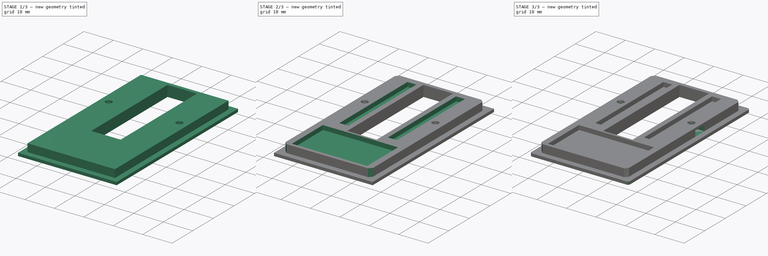
[diagram: build sequence overview — one tinted view per stage of 3, left to right]
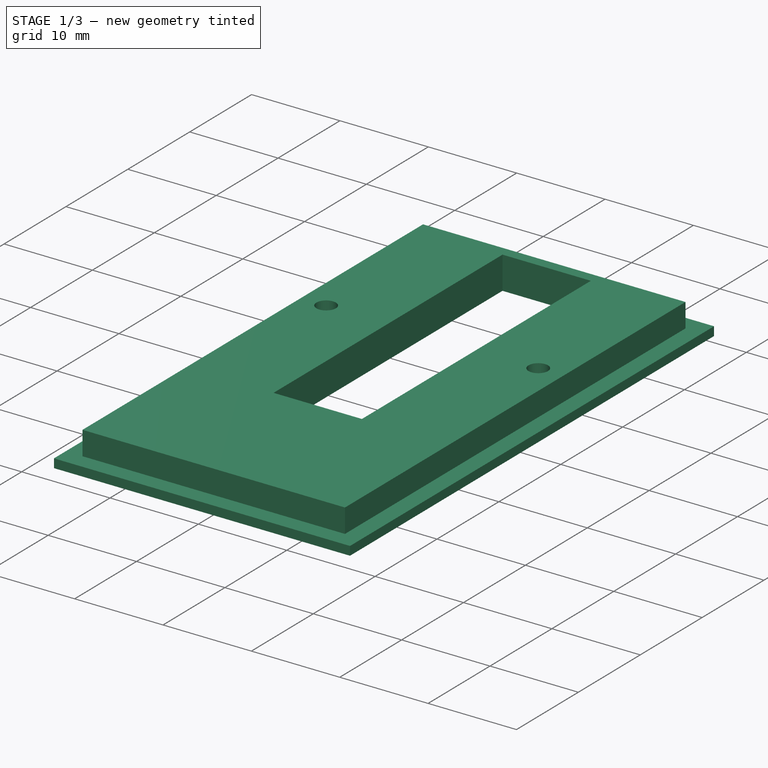
[diagram: stage 1 of 3 — iso view after this stage's code; geometry added in this stage tinted green]
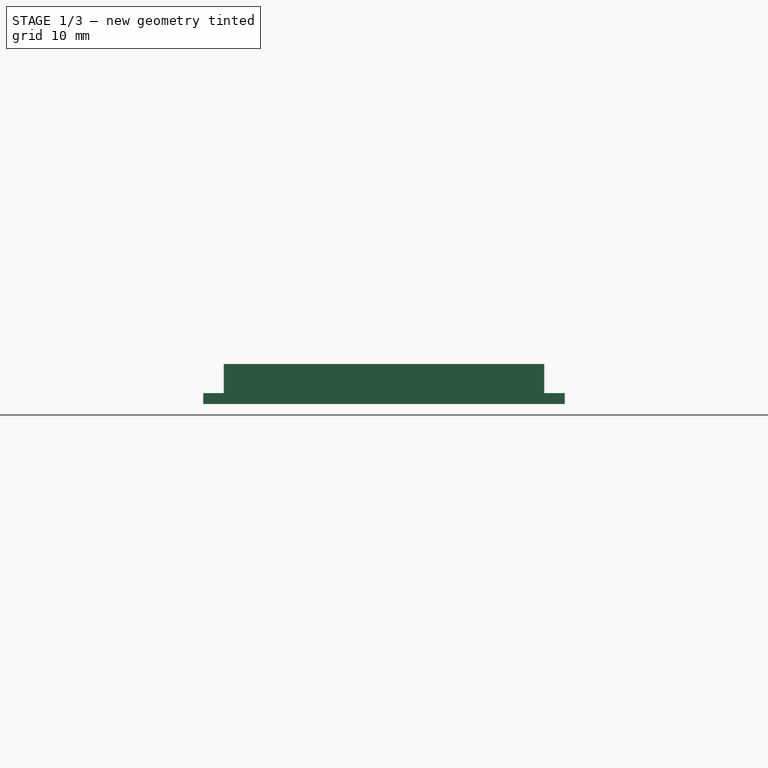
[diagram: stage 1 of 3 — front view after this stage's code; geometry added in this stage tinted green]
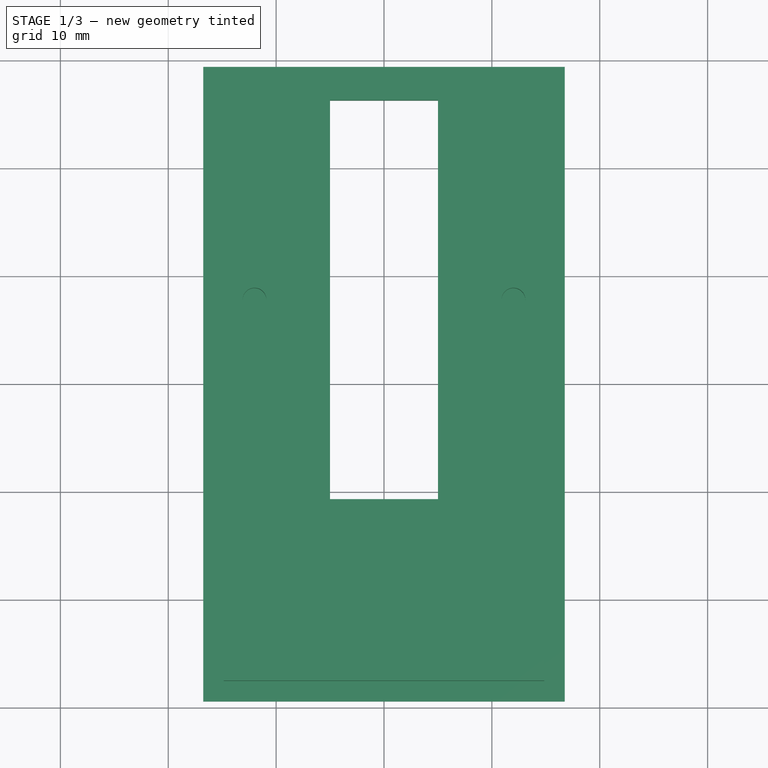
[diagram: stage 1 of 3 — top view after this stage's code; geometry added in this stage tinted green]
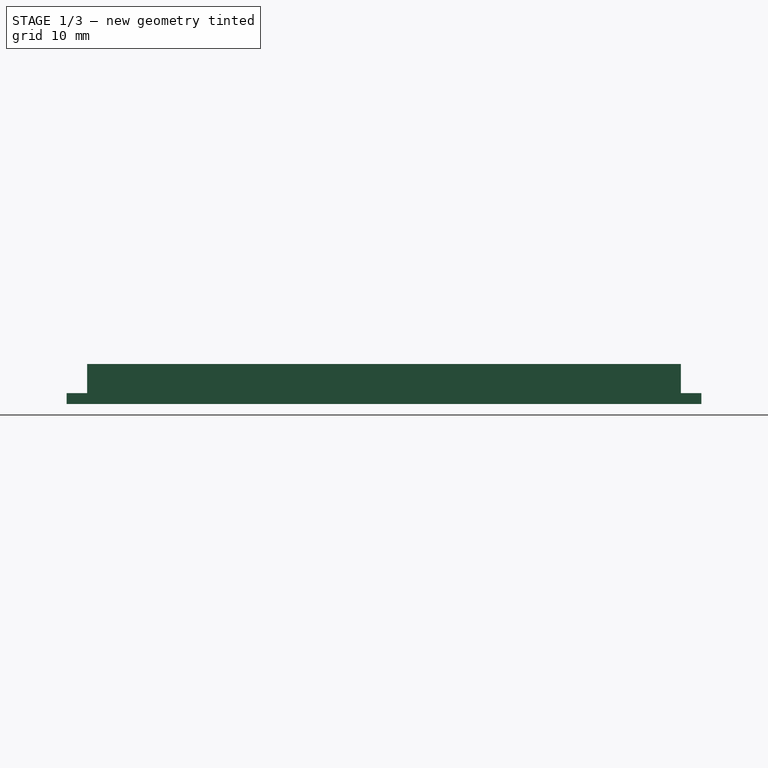
[diagram: stage 1 of 3 — right view after this stage's code; geometry added in this stage tinted green]
FCSTD DOCUMENT  (FreeCAD 1.0R39319 (Git))
Label: bay-top-1.1
License: All rights reserved
LicenseURL: https://en.wikipedia.org/wiki/All_rights_reserved
objects: Sketcher::SketchObject×5, PartDesign::Pocket×3, PartDesign::Pad×2, PartDesign::Chamfer×2, PartDesign::Mirrored×1, PartDesign::Body×1
note: 34 computed .brp shape members not serialized (recipe doc carries the construction recipe); baked Part::Feature solids carry a one-line shape summary decoded from their .brp

FEATURE [Sketcher::SketchObject] Sketch
  ArcFitTolerance = 1e-06
  AttachmentSupport = -> [XY_Plane]
  FullyConstrained = true
  MakeInternals = false
  MapMode = 5
  sketch-geometry (13):
    g0: LineSegment StartX=-14.85 StartY=27.5165 StartZ=0 EndX=-14.85 EndY=-27.5165 EndZ=0
    g1: LineSegment StartX=-14.85 StartY=-27.5165 StartZ=0 EndX=14.85 EndY=-27.5165 EndZ=0
    g2: LineSegment StartX=14.85 StartY=-27.5165 StartZ=0 EndX=14.85 EndY=27.5165 EndZ=0
    g3: LineSegment StartX=14.85 StartY=27.5165 StartZ=0 EndX=-14.85 EndY=27.5165 EndZ=0
    g4: GeomPoint [constr] X=0 Y=0 Z=0
    g5: LineSegment [constr] StartX=-14.25 StartY=-26.9165 StartZ=0 EndX=14.25 EndY=-26.9165 EndZ=0
    g6: LineSegment [constr] StartX=14.25 StartY=-26.9165 StartZ=0 EndX=14.25 EndY=26.9165 EndZ=0
    g7: LineSegment [constr] StartX=14.25 StartY=26.9165 StartZ=0 EndX=-14.25 EndY=26.9165 EndZ=0
    g8: LineSegment [constr] StartX=-14.25 StartY=26.9165 StartZ=0 EndX=-14.25 EndY=-26.9165 EndZ=0
    g9: GeomPoint [constr] X=0 Y=0 Z=0
    g10: Circle CenterX=-12 CenterY=7.7915 CenterZ=0 NormalX=0 NormalY=0 NormalZ=1 AngleXU=0 Radius=1.1
    g11: Circle CenterX=12 CenterY=7.7915 CenterZ=0 NormalX=0 NormalY=0 NormalZ=1 AngleXU=0 Radius=1.1
    g12: LineSegment [constr] StartX=-12 StartY=7.7915 StartZ=0 EndX=12 EndY=7.7915 EndZ=0
  constraints (31):
    c: Coincident(g0,g1)
    c: Coincident(g1,g2)
    c: Coincident(g2,g3)
    c: Coincident(g3,g0)
    c: Vertical(g0)
    c: Vertical(g2)
    c: Horizontal(g1)
    c: Horizontal(g3)
    c: Symmetric(g2,g0,g4)
    c: Coincident(g4,g-1)
    c: Coincident(g5,g6)
    c: Coincident(g6,g7)
    c: Coincident(g7,g8)
    c: Coincident(g8,g5)
    c: Horizontal(g5)
    c: Horizontal(g7)
    c: Vertical(g6)
    c: Vertical(g8)
    c: Symmetric(g7,g5,g9)
    c: Coincident(g9,g4)
    c: DistanceX(g7,g7) = 28.5
    c: DistanceY(g6,g6) = 53.833
    c: Equal(g10,g11)
    c: Coincident(g12,g10)
    c: Coincident(g12,g11)
    c: DistanceX(g7,g10) = 2.25
    c: Symmetric(g10,g11,g-2)
    c: Diameter(g10) = 2.2
    c: Distance(g0,g8) = 0.6
    c: Distance(g7,g3) = 0.6
    c: Distance(g12,g7) = 19.125
FEATURE [PartDesign::Pad] Pad
  Direction = (0,0,1)
  Length = 3.7
  Length2 = 10
  Profile = -> Sketch
  ReferenceAxis = -> Sketch [N_Axis]
  Refine = true
  Suppressed = false
  Type = 0
FEATURE [Sketcher::SketchObject] Sketch001
  ArcFitTolerance = 1e-06
  AttachmentSupport = -> [Pad]
  ExternalGeometry = -> [Pad]
  FullyConstrained = true
  MakeInternals = false
  MapMode = 5
  Placement = pos=(0,0,0) rot=(1,0,0;3.14159rad)
  sketch-geometry (6):
    g0: LineSegment StartX=-16.75 StartY=29.415 StartZ=0 EndX=-16.75 EndY=-29.415 EndZ=0
    g1: LineSegment StartX=-16.75 StartY=-29.415 StartZ=0 EndX=16.75 EndY=-29.415 EndZ=0
    g2: LineSegment StartX=16.75 StartY=-29.415 StartZ=0 EndX=16.75 EndY=29.415 EndZ=0
    g3: LineSegment StartX=16.75 StartY=29.415 StartZ=0 EndX=-16.75 EndY=29.415 EndZ=0
    g4: GeomPoint [constr] X=0 Y=0 Z=0
    g5: GeomPoint [constr] X=0 Y=0 Z=0
  constraints (13):
    c: Coincident(g0,g1)
    c: Coincident(g1,g2)
    c: Coincident(g2,g3)
    c: Coincident(g3,g0)
    c: Vertical(g0)
    c: Vertical(g2)
    c: Horizontal(g1)
    c: Horizontal(g3)
    c: Symmetric(g2,g0,g4)
    c: Coincident(g4,g-1)
    c: Coincident(g5,g4)
    c: DistanceX(g3,g3) = 33.5
    c: DistanceY(g2,g2) = 58.83
FEATURE [PartDesign::Pad] Pad001
  BaseFeature = -> Pad
  Direction = (0,0,-1)
  Length = 1
  Length2 = 10
  Profile = -> Sketch001
  ReferenceAxis = -> Sketch001 [N_Axis]
  Refine = true
  Reversed = true
  Suppressed = false
  Type = 0
FEATURE [Sketcher::SketchObject] Sketch003
  ArcFitTolerance = 1e-06
  FullyConstrained = true
  MakeInternals = false
  MapMode = 5
  Placement = pos=(0,0,0) rot=(1,0,0;3.14159rad)
  sketch-geometry (4):
    g0: LineSegment StartX=-5 StartY=10.7085 StartZ=0 EndX=-5 EndY=-26.2915 EndZ=0
    g1: LineSegment StartX=-5 StartY=-26.2915 StartZ=0 EndX=5 EndY=-26.2915 EndZ=0
    g2: LineSegment StartX=5 StartY=-26.2915 StartZ=0 EndX=5 EndY=10.7085 EndZ=0
    g3: LineSegment StartX=5 StartY=10.7085 StartZ=0 EndX=-5 EndY=10.7085 EndZ=0
  constraints (11):
    c: Coincident(g0,g1)
    c: Coincident(g1,g2)
    c: Coincident(g2,g3)
    c: Coincident(g3,g0)
    c: Vertical(g0)
    c: Vertical(g2)
    c: Horizontal(g3)
    c: DistanceX(g3,g3) = 10
    c: DistanceY(g2,g2) = 37
    c: Symmetric(g0,g1,g-2)
    c: DistanceY(g0,g-3) = 18.5
FEATURE [PartDesign::Pocket] Pocket001
  BaseFeature = -> Pad001
  Direction = (0,0,1)
  Length = 5
  Length2 = 5
  Profile = -> Sketch003
  ReferenceAxis = -> Sketch003 [N_Axis]
  Refine = true
  Suppressed = false
  Type = 1
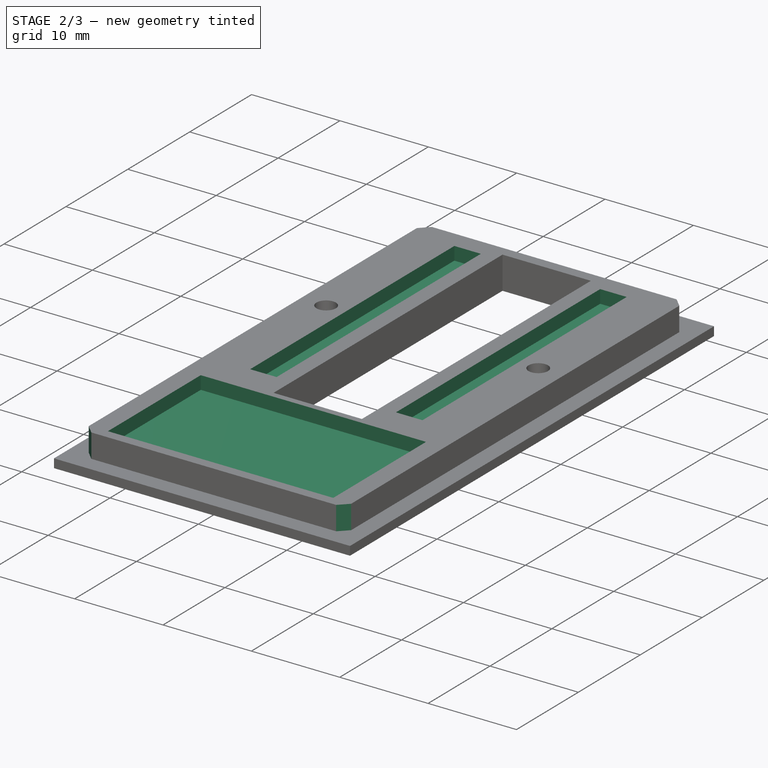
[diagram: stage 2 of 3 — iso view after this stage's code; geometry added in this stage tinted green]
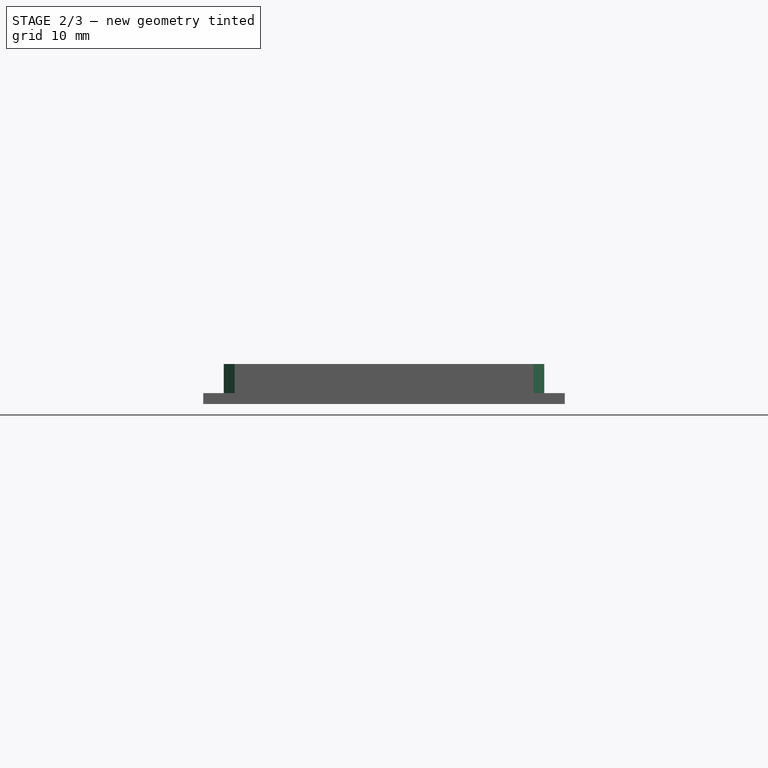
[diagram: stage 2 of 3 — front view after this stage's code; geometry added in this stage tinted green]
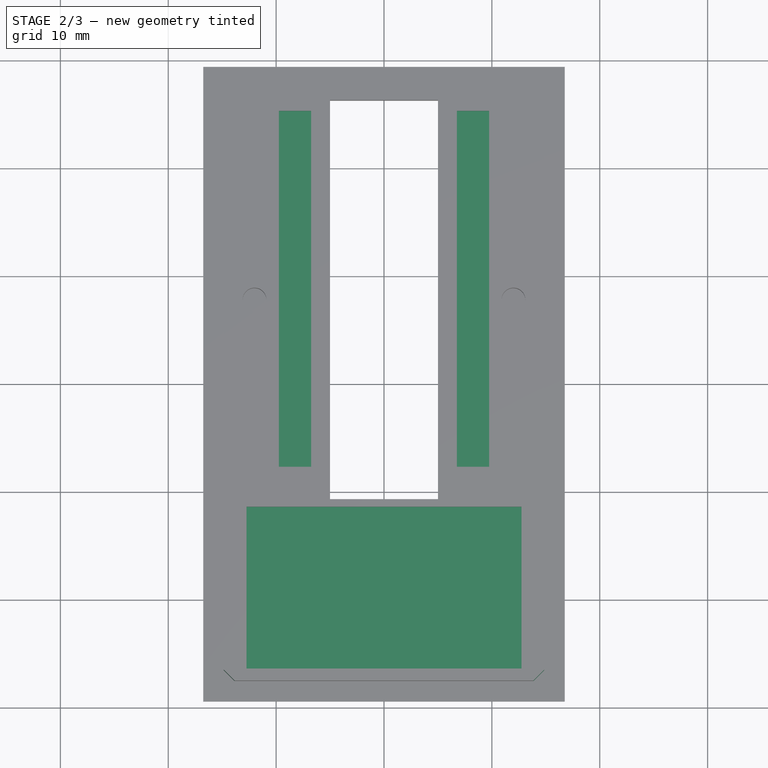
[diagram: stage 2 of 3 — top view after this stage's code; geometry added in this stage tinted green]
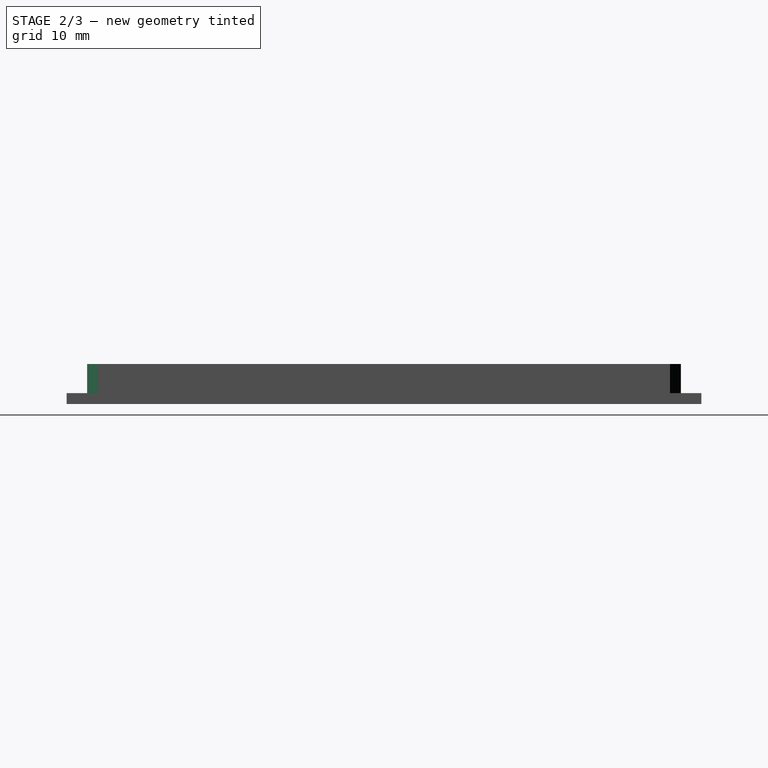
[diagram: stage 2 of 3 — right view after this stage's code; geometry added in this stage tinted green]
FEATURE [Sketcher::SketchObject] Sketch004
  ArcFitTolerance = 1e-06
  AttachmentSupport = -> [Pocket001]
  ExternalGeometry = -> [Pocket001]
  FullyConstrained = true
  MakeInternals = false
  MapMode = 5
  Placement = pos=(0,0,3.7) rot=(0,0,1;0rad)
  sketch-geometry (12):
    g0: LineSegment StartX=-9.75 StartY=25.2915 StartZ=0 EndX=-9.75 EndY=-7.7085 EndZ=0
    g1: LineSegment StartX=-9.75 StartY=-7.7085 StartZ=0 EndX=-6.75 EndY=-7.7085 EndZ=0
    g2: LineSegment StartX=-6.75 StartY=-7.7085 StartZ=0 EndX=-6.75 EndY=25.2915 EndZ=0
    g3: LineSegment StartX=-6.75 StartY=25.2915 StartZ=0 EndX=-9.75 EndY=25.2915 EndZ=0
    g4: LineSegment StartX=6.75 StartY=25.2915 StartZ=0 EndX=6.75 EndY=-7.7085 EndZ=0
    g5: LineSegment StartX=6.75 StartY=-7.7085 StartZ=0 EndX=9.75 EndY=-7.7085 EndZ=0
    g6: LineSegment StartX=9.75 StartY=-7.7085 StartZ=0 EndX=9.75 EndY=25.2915 EndZ=0
    g7: LineSegment StartX=9.75 StartY=25.2915 StartZ=0 EndX=6.75 EndY=25.2915 EndZ=0
    g8: LineSegment StartX=-12.75 StartY=-11.4085 StartZ=0 EndX=-12.75 EndY=-26.4085 EndZ=0
    g9: LineSegment StartX=-12.75 StartY=-26.4085 StartZ=0 EndX=12.75 EndY=-26.4085 EndZ=0
    g10: LineSegment StartX=12.75 StartY=-26.4085 StartZ=0 EndX=12.75 EndY=-11.4085 EndZ=0
    g11: LineSegment StartX=12.75 StartY=-11.4085 StartZ=0 EndX=-12.75 EndY=-11.4085 EndZ=0
  constraints (34):
    c: Coincident(g0,g1)
    c: Coincident(g1,g2)
    c: Coincident(g2,g3)
    c: Coincident(g3,g0)
    c: Vertical(g0)
    c: Vertical(g2)
    c: Horizontal(g1)
    c: Horizontal(g3)
    c: Coincident(g4,g5)
    c: Coincident(g5,g6)
    c: Coincident(g6,g7)
    c: Coincident(g7,g4)
    c: Vertical(g4)
    c: Vertical(g6)
    c: Horizontal(g5)
    c: Horizontal(g7)
    c: Coincident(g8,g9)
    c: Coincident(g9,g10)
    c: Coincident(g10,g11)
    c: Coincident(g11,g8)
    c: Vertical(g8)
    c: Vertical(g10)
    c: Horizontal(g9)
    c: Symmetric(g2,g4,g-2)
    c: Symmetric(g8,g10,g-2)
    c: Equal(g3,g7)
    c: Equal(g0,g6)
    c: DistanceX(g-3,g2) = 5.25
    c: DistanceY(g-3,g2) = 17.5
    c: DistanceX(g3,g3) = 3
    c: DistanceY(g2,g2) = 33
    c: DistanceX(g9,g9) = 25.5
    c: DistanceY(g8,g8) = 15
    c: Distance(g-3,g11) = 19.2
FEATURE [PartDesign::Pocket] Pocket002
  BaseFeature = -> Pocket001
  Direction = (0,0,-1)
  Length = 1.5
  Length2 = 5
  Profile = -> Sketch004
  ReferenceAxis = -> Sketch004 [N_Axis]
  Refine = true
  Suppressed = false
  Type = 0
FEATURE [PartDesign::Chamfer] Chamfer
  Angle = 45
  Base = -> Pocket002 [Edge29,Edge32,Edge31,Edge34]
  BaseFeature = -> Pocket002
  ChamferType = 0
  FlipDirection = false
  Refine = true
  Size = 1
  Size2 = 1
  SupportTransform = false
  Suppressed = false
  UseAllEdges = false
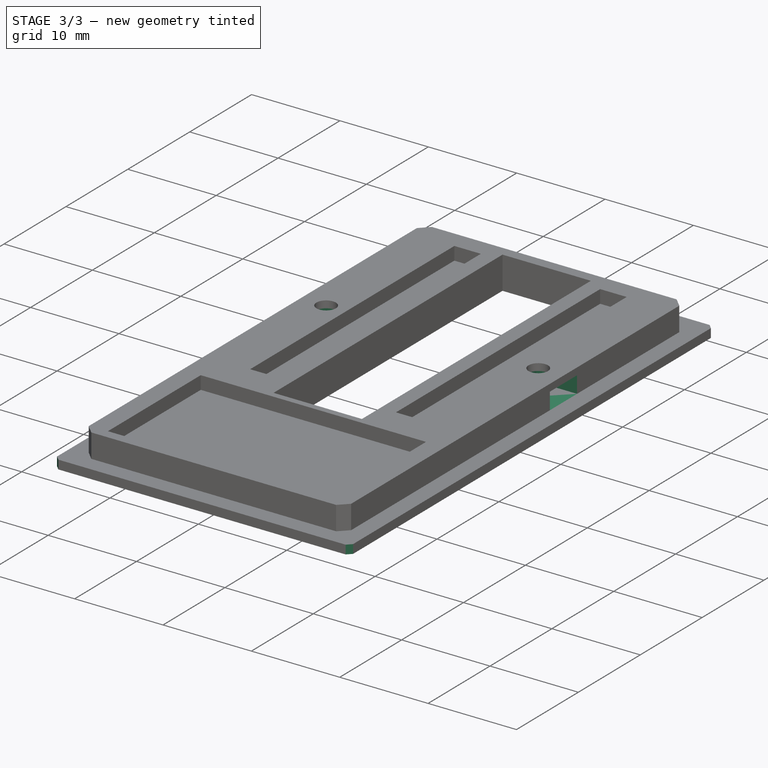
[diagram: stage 3 of 3 — iso view after this stage's code; geometry added in this stage tinted green]
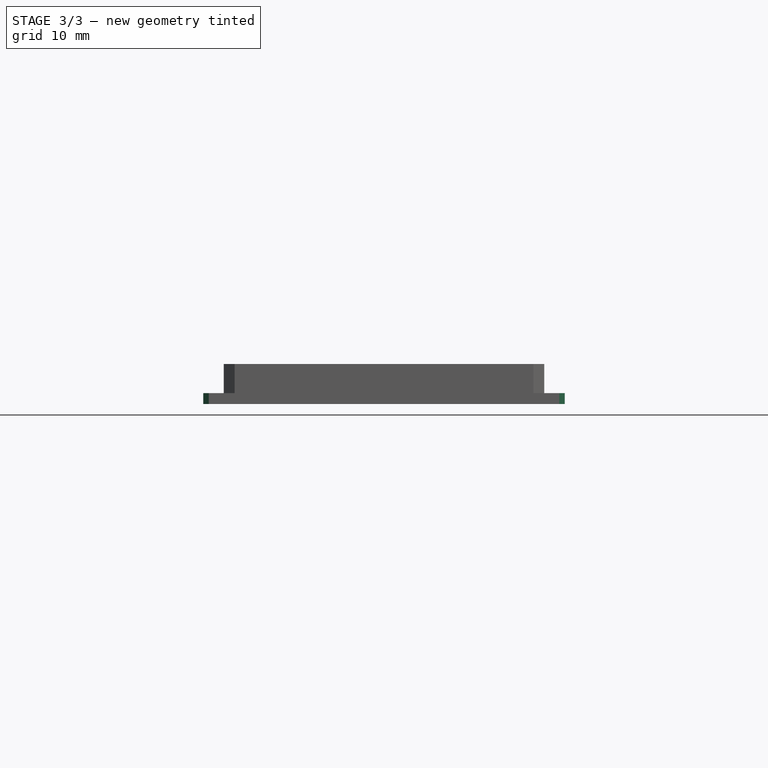
[diagram: stage 3 of 3 — front view after this stage's code; geometry added in this stage tinted green]
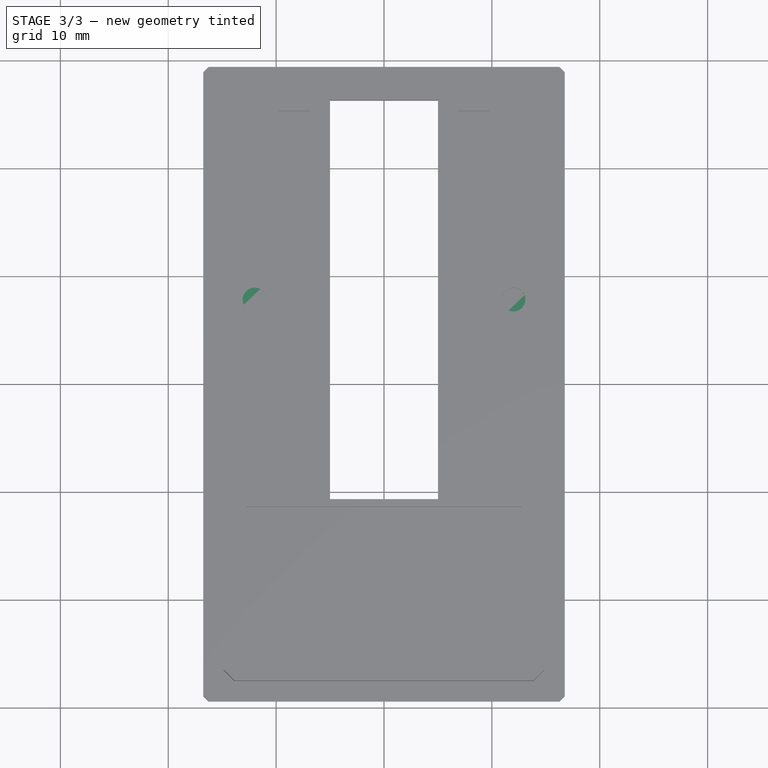
[diagram: stage 3 of 3 — top view after this stage's code; geometry added in this stage tinted green]
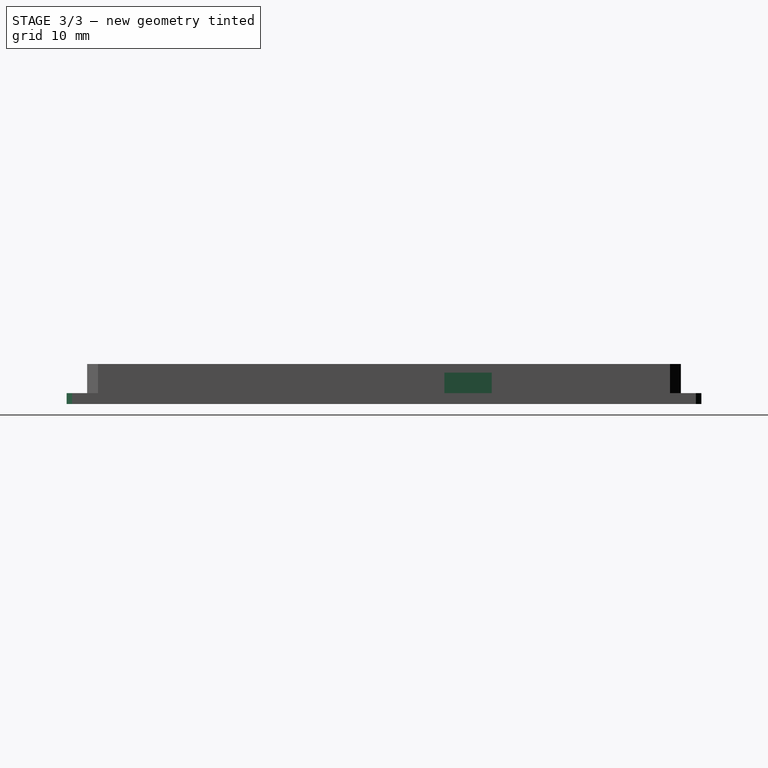
[diagram: stage 3 of 3 — right view after this stage's code; geometry added in this stage tinted green]
FEATURE [PartDesign::Chamfer] Chamfer001
  Angle = 45
  Base = -> Chamfer [Edge29,Edge30,Edge34,Edge32]
  BaseFeature = -> Chamfer
  ChamferType = 0
  FlipDirection = false
  Refine = true
  Size = 0.5
  Size2 = 1
  SupportTransform = false
  Suppressed = false
  UseAllEdges = false
FEATURE [Sketcher::SketchObject] Sketch005
  ArcFitTolerance = 1e-06
  AttachmentSupport = -> [Chamfer001]
  ExternalGeometry = -> [Chamfer001]
  FullyConstrained = true
  MakeInternals = false
  MapMode = 5
  Placement = pos=(-14.85,0,0) rot=(0.57735,-0.57735,-0.57735;2.0944rad)
  sketch-geometry (5):
    g0: LineSegment StartX=-9.9915 StartY=1 StartZ=0 EndX=-5.5915 EndY=1 EndZ=0
    g1: LineSegment StartX=-5.5915 StartY=1 StartZ=0 EndX=-5.5915 EndY=2.9 EndZ=0
    g2: LineSegment StartX=-5.5915 StartY=2.9 StartZ=0 EndX=-9.9915 EndY=2.9 EndZ=0
    g3: LineSegment StartX=-9.9915 StartY=2.9 StartZ=0 EndX=-9.9915 EndY=1 EndZ=0
    g4: LineSegment [constr] StartX=-7.7915 StartY=2.9 StartZ=0 EndX=-7.7915 EndY=3.7 EndZ=0
  constraints (14):
    c: Coincident(g0,g1)
    c: Coincident(g1,g2)
    c: Coincident(g2,g3)
    c: Coincident(g3,g0)
    c: Horizontal(g0)
    c: Horizontal(g2)
    c: Vertical(g1)
    c: Vertical(g3)
    c: PointOnObject(g0,g-4)
    c: DistanceX(g2,g2) = 4.4
    c: Symmetric(g2,g2,g4)
    c: Symmetric(g-3,g-3,g4)
    c: Vertical(g4)
    c: DistanceY(g3,g3) = 1.9
FEATURE [PartDesign::Pocket] Pocket
  BaseFeature = -> Chamfer001
  Direction = (1,0,0)
  Length = 4.6
  Length2 = 5
  Profile = -> Sketch005
  ReferenceAxis = -> Sketch005 [N_Axis]
  Refine = true
  Suppressed = false
  Type = 0
FEATURE [PartDesign::Mirrored] Mirrored
  BaseFeature = -> Pocket
  MirrorPlane = -> YZ_Plane
  Originals = -> [Pocket]
  Refine = true
  Suppressed = false
  TransformMode = 0
FEATURE [PartDesign::Body] Body
  AllowCompound = false
  Group = -> [Sketch,Pad,Sketch001,Pad001,Sketch003,Pocket001,Sketch004,Pocket002,Chamfer,Chamfer001,Sketch005,Pocket,Mirrored]
  Origin = -> Origin
  Tip = -> Mirrored
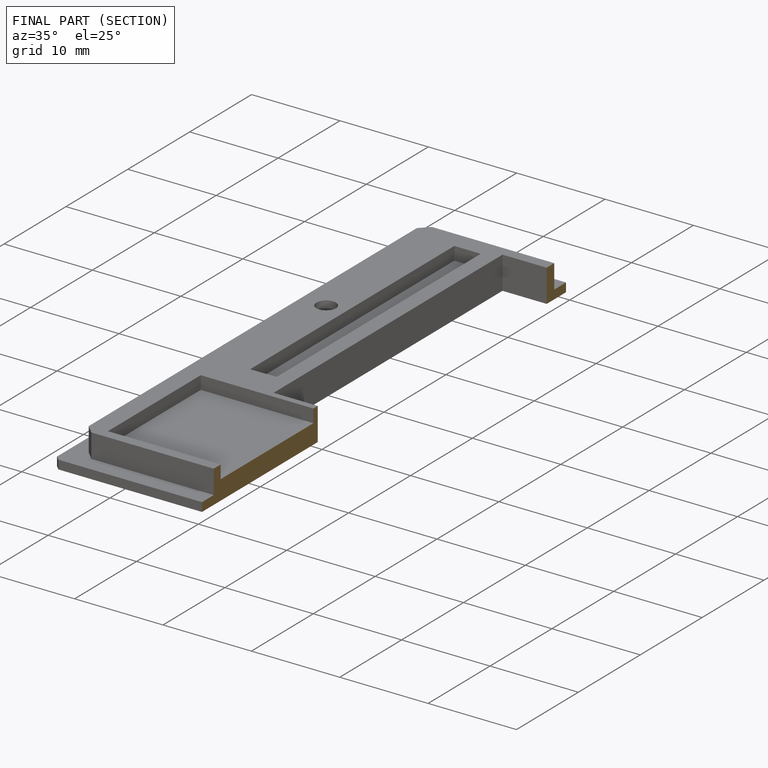
[diagram: finished part — half-section view (interior)]
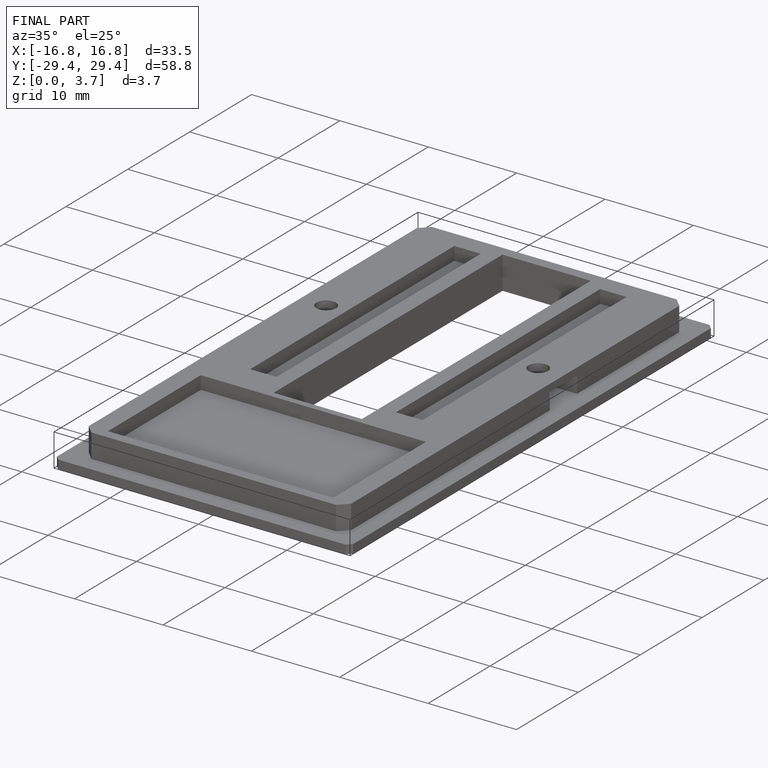
[diagram: finished part — iso view with bounding-box wireframe]
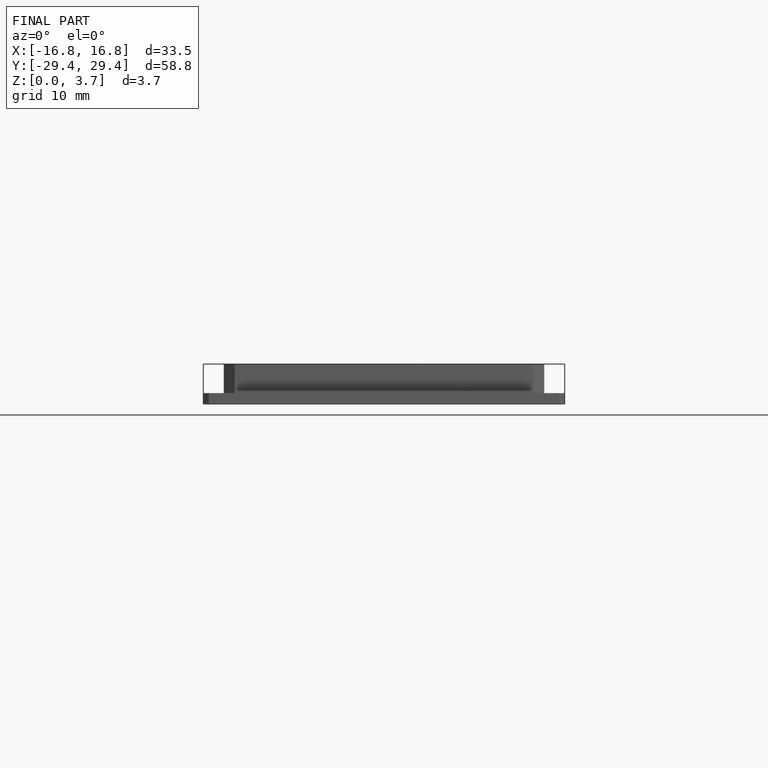
[diagram: finished part — front view with bounding-box wireframe]
